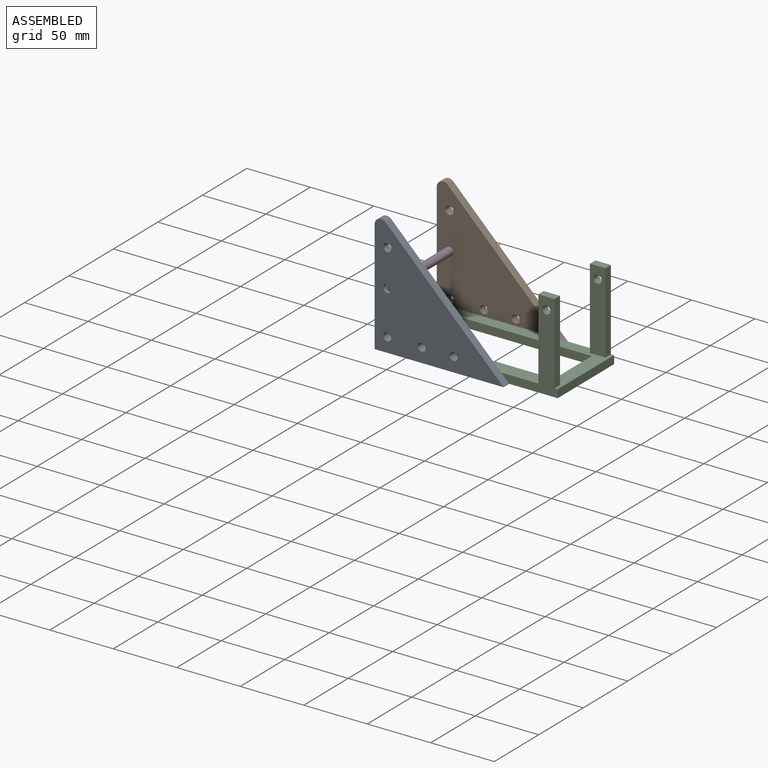
[diagram: assembled view]
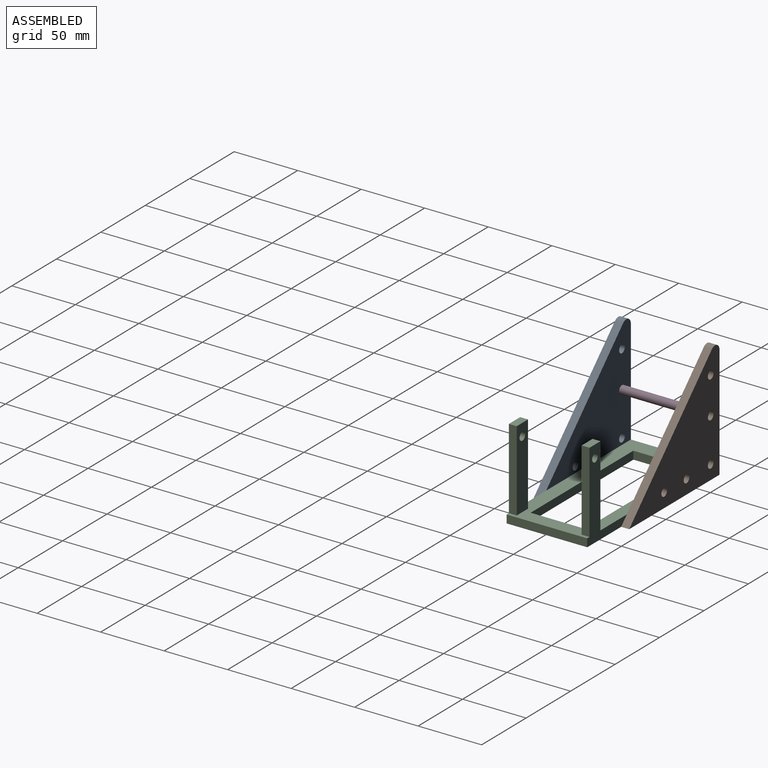
[diagram: assembled view, second angle]
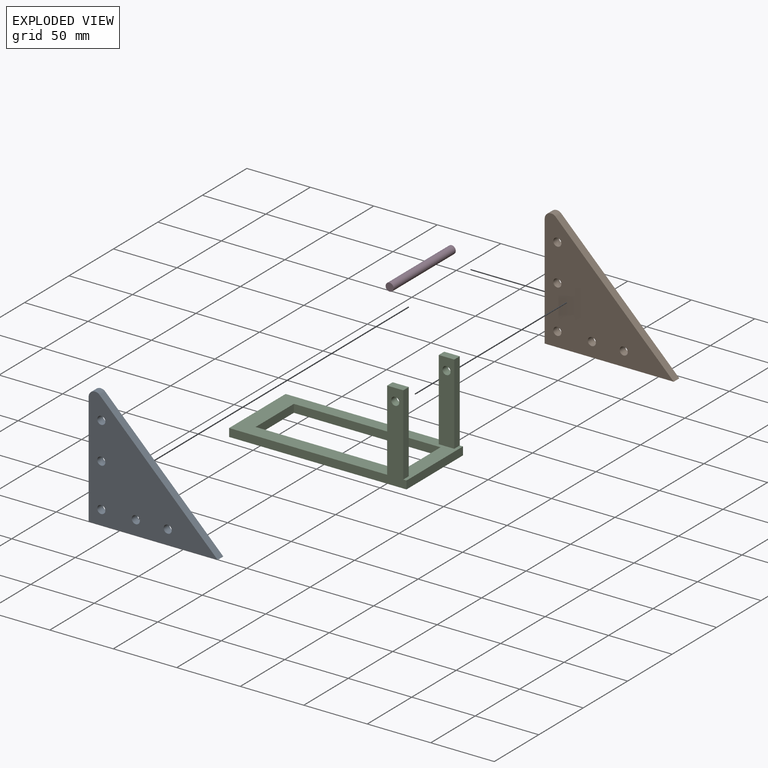
[diagram: exploded view]
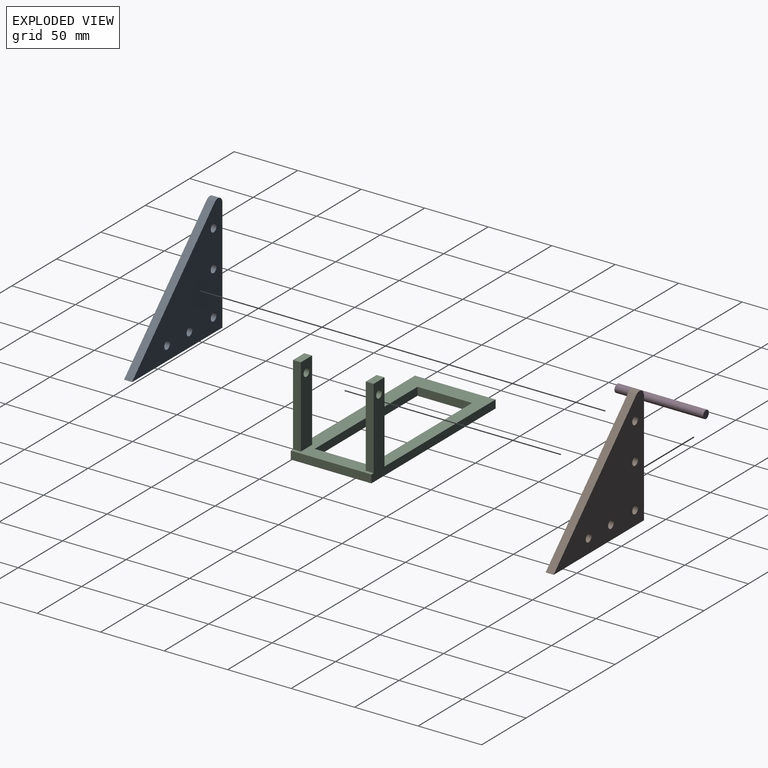
[diagram: exploded view, second angle]
ASSEMBLY  parts=4 mates=3
PART A: 11 faces, bbox 101.6x6.4x94 mm
  f0: plane 101.6x6.35mm, normal (0,0,-1), area 645.2mm2, adj f1,f8,f9,f10
  f1: plane 92.94x92.5mm, normal (0.71,0,0.71), area 832.6mm2, adj f0,f2,f9,f10
  f2: cylinder r=5.08mm len=8.66mm, axis (0,1,0), area 75.9mm2, adj f1,f8,f9,f10
  f3: cylinder r=3.17mm len=6.35mm, axis (0,1,0), area 126.7mm2, adj f9,f10
  f4: cylinder r=3.17mm len=6.35mm, axis (0,1,0), area 126.7mm2, adj f9,f10
  f5: cylinder r=3.17mm len=6.35mm, axis (0,1,0), area 126.7mm2, adj f9,f10
  f6: cylinder r=3.17mm len=6.35mm, axis (0,1,0), area 126.7mm2, adj f9,f10
  f7: cylinder r=3.17mm len=6.35mm, axis (0,1,0), area 126.7mm2, adj f9,f10
  f8: plane 88.9x6.35mm, normal (-1,0,0), area 564.5mm2, adj f0,f2,f9,f10
  f9: plane 101.6x93.98mm, normal (0,-1,0), area 4947mm2, adj f0,f1,f2,f3,f4,f5,f6,f7
  f10: plane 101.6x93.98mm, normal (0,1,0), area 4947mm2, adj f0,f1,f2,f3,f4,f5,f6,f7
PART B: same geometry as A
PART C: 20 faces, bbox 139.7x63.5x69.9 mm
  f0: plane 115.51x6.35mm, normal (0,1,0), area 733.5mm2, adj f1,f7,f8,f9
  f1: plane 43x6.35mm, normal (1,0,0), area 273.1mm2, adj f0,f2,f8,f9
  f2: plane 115.51x6.35mm, normal (0,-1,0), area 733.5mm2, adj f1,f7,f8,f9
  f3: plane 63.5x6.35mm, normal (-1,0,0), area 403.2mm2, adj f4,f6,f8,f9
  f4: plane 139.7x69.85mm, normal (0,-1,0), area 1661.9mm2, adj f3,f5,f8,f9,f10,f11,f12,f14
  f5: plane 63.5x6.35mm, normal (1,0,0), area 403.2mm2, adj f4,f6,f8,f9
  f6: plane 139.7x69.85mm, normal (0,1,0), area 1632.5mm2, adj f3,f5,f8,f9,f15,f16,f17,f19
  f7: plane 43x6.35mm, normal (-1,0,0), area 273.1mm2, adj f0,f2,f8,f9
  f8: plane 139.7x63.5mm, normal (0,0,1), area 3749.6mm2, adj f0,f1,f2,f3,f4,f5,f6,f7
  f9: plane 139.7x63.5mm, normal (0,0,-1), area 3903.6mm2, adj f0,f1,f2,f3,f4,f5,f6,f7
  f10: plane 63.5x6.17mm, normal (-1,0,0), area 392mm2, adj f4,f8,f12,f13
  f11: plane 63.5x6.17mm, normal (1,0,0), area 392mm2, adj f4,f8,f12,f13
  f12: plane 12.7x6.17mm, normal (0,0,1), area 78.4mm2, adj f4,f10,f11,f13
  f13: plane 63.5x12.7mm, normal (0,1,0), area 774.8mm2, adj f8,f10,f11,f12,f14
  f14: cylinder r=3.17mm len=6.35mm, axis (0,1,0), area 123.1mm2, adj f4,f13
  f15: plane 63.5x6.17mm, normal (-1,0,0), area 391.9mm2, adj f6,f8,f16,f18
  f16: plane 12.24x6.17mm, normal (0,0,1), area 75.5mm2, adj f6,f15,f17,f18
  f17: plane 63.5x6.17mm, normal (1,0,0), area 391.9mm2, adj f6,f8,f16,f18
  f18: plane 63.5x12.24mm, normal (0,-1,0), area 745.4mm2, adj f8,f15,f16,f17,f19
  f19: cylinder r=3.17mm len=6.35mm, axis (0,1,0), area 123.1mm2, adj f6,f18
PART D: 3 faces, bbox 69.9x6.4x6.4 mm
  f0: cylinder r=3.17mm len=69.85mm, axis (1,0,0), area 1393.4mm2, adj f1,f2
  f1: plane 6.35x6.35mm, normal (-1,0,0), area 31.7mm2, adj f0
  f2: plane 6.35x6.35mm, normal (1,0,0), area 31.7mm2, adj f0
PLACE A t=(-118.36,-27.16,21.84)mm
PLACE B t=(-118.36,42.69,21.84)mm
PLACE C t=(-82.82,13.33,-39.46)mm fixed
PLACE D rot(axis=(0,0,-1),90deg) t=(-160.88,-30.85,6.28)mm
MATE slider D.f0 <-> B.f4  axis (0,1,0) through (-160.88,39,6.28)mm
MATE fastened B.f9 <-> C.f6  axis (0,-1,0) through (-170.84,36.34,-39.46)mm
MATE fastened A.f10 <-> C.f4  axis (0,1,0) through (-170.84,-27.16,-39.46)mm
